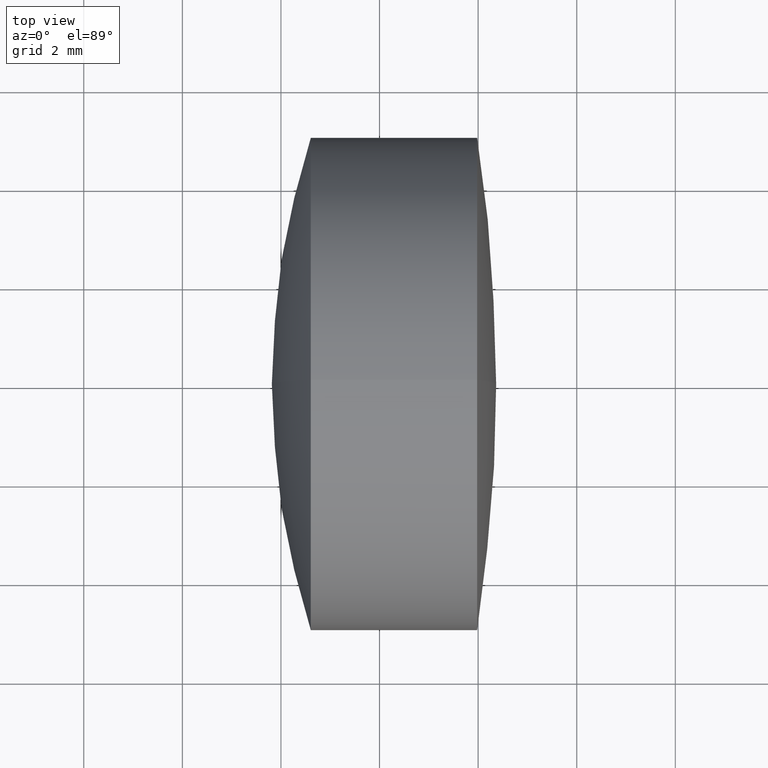
[diagram: clean part render]
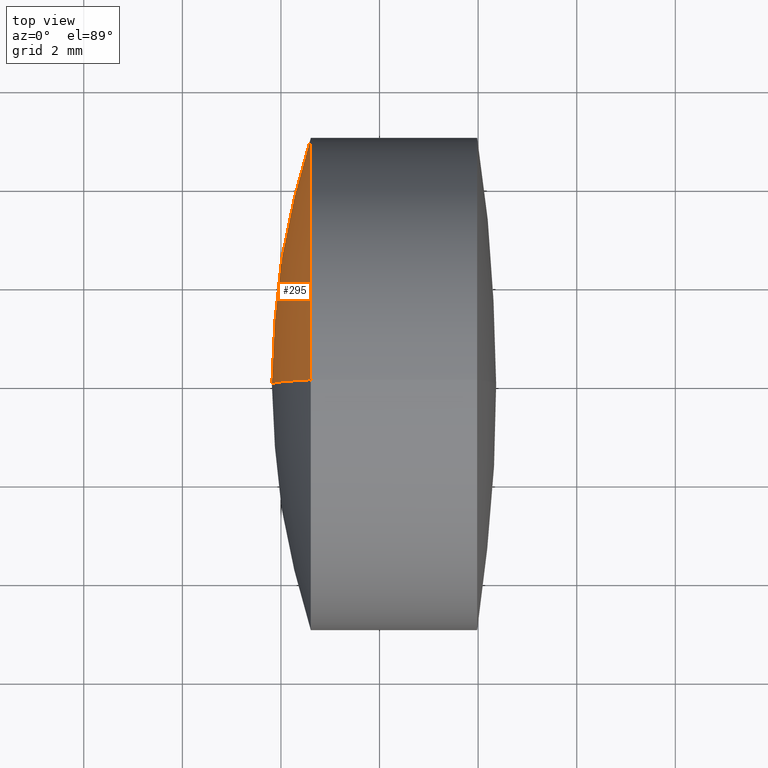
[diagram: same view with one face highlighted and labeled with its STEP entity id]
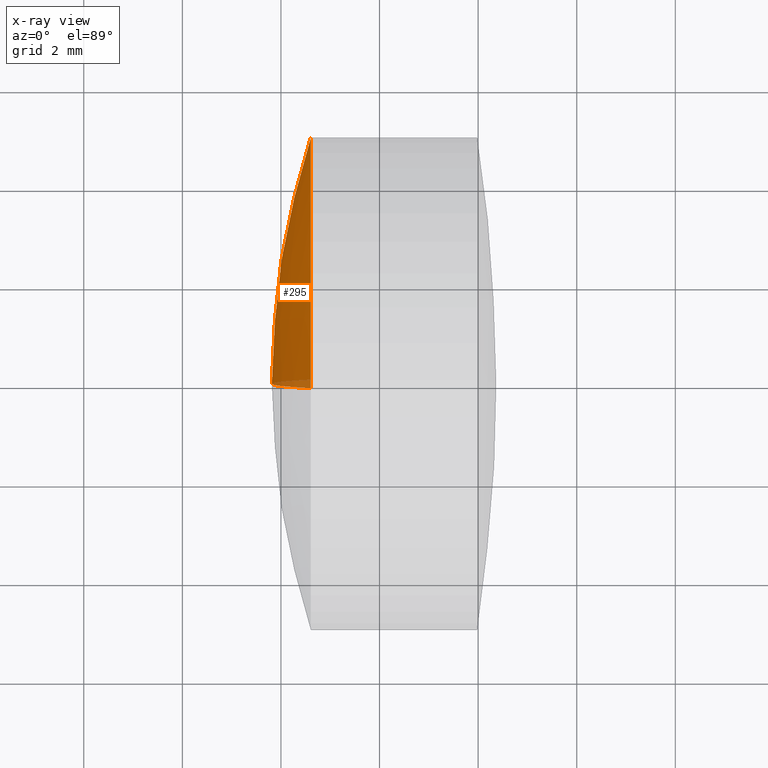
[diagram: x-ray of the same camera — body ghosted, the highlighted face saturated]
A machine part, top view. The second image highlights one B-rep face of the part: STEP entity #295.
The next image is the same camera in x-ray: the body ghosted, the highlighted face saturated — about 3% of this face is hidden behind the body in this view.
In plain terms, the highlighted spherical surface has radius 16.222 mm.
Its self-contained STEP definition (entity closure, byte-faithful):
#5 = CARTESIAN_POINT ( 'NONE',  ( 2.605354894896702700, 0.0000000000000000000, 5.000000000000002700 ) ) ;
#13 = CIRCLE ( 'NONE', #267, 16.22200000000000100 ) ;
#21 = SPHERICAL_SURFACE ( 'NONE', #198, 16.22200000000000100 ) ;
#22 = CIRCLE ( 'NONE', #72, 16.22200000000000100 ) ;
#25 = CARTESIAN_POINT ( 'NONE',  ( 1.815570678769085100, 0.0000000000000000000, 3.326856764881216400E-016 ) ) ;
#26 = CARTESIAN_POINT ( 'NONE',  ( 2.605354894896700900, 0.0000000000000000000, 0.0000000000000000000 ) ) ;
#30 = ORIENTED_EDGE ( 'NONE', *, *, #55, .T. ) ;
#47 = FACE_OUTER_BOUND ( 'NONE', #67, .T. ) ;
#50 = DIRECTION ( 'NONE',  ( 0.0000000000000000000, -1.224646799147353200E-016, 1.000000000000000000 ) ) ;
#55 = EDGE_CURVE ( 'NONE', #59, #318, #337, .T. ) ;
#59 = VERTEX_POINT ( 'NONE', #5 ) ;
#61 = ORIENTED_EDGE ( 'NONE', *, *, #291, .T. ) ;
#67 = EDGE_LOOP ( 'NONE', ( #30, #61, #327 ) ) ;
#72 = AXIS2_PLACEMENT_3D ( 'NONE', #76, #163, #290 ) ;
#76 = CARTESIAN_POINT ( 'NONE',  ( 18.03757067876908600, 0.0000000000000000000, -6.606253423002966100E-016 ) ) ;
#100 = DIRECTION ( 'NONE',  ( -0.0000000000000000000, 1.000000000000000000, 1.224646799147353200E-016 ) ) ;
#120 = DIRECTION ( 'NONE',  ( 0.0000000000000000000, 1.000000000000000000, 0.0000000000000000000 ) ) ;
#156 = CARTESIAN_POINT ( 'NONE',  ( 18.03757067876908600, 0.0000000000000000000, -6.606253423002966100E-016 ) ) ;
#163 = DIRECTION ( 'NONE',  ( 0.0000000000000000000, -1.000000000000000000, 0.0000000000000000000 ) ) ;
#182 = CARTESIAN_POINT ( 'NONE',  ( 2.605354894896702700, 6.123233995736769200E-016, -5.000000000000002700 ) ) ;
#190 = DIRECTION ( 'NONE',  ( -1.000000000000000000, -0.0000000000000000000, -0.0000000000000000000 ) ) ;
#198 = AXIS2_PLACEMENT_3D ( 'NONE', #300, #120, #216 ) ;
#216 = DIRECTION ( 'NONE',  ( 0.0000000000000000000, 0.0000000000000000000, 1.000000000000000000 ) ) ;
#224 = AXIS2_PLACEMENT_3D ( 'NONE', #26, #190, #282 ) ;
#259 = VERTEX_POINT ( 'NONE', #25 ) ;
#267 = AXIS2_PLACEMENT_3D ( 'NONE', #156, #100, #50 ) ;
#282 = DIRECTION ( 'NONE',  ( 0.0000000000000000000, 0.0000000000000000000, 1.000000000000000000 ) ) ;
#287 = EDGE_CURVE ( 'NONE', #59, #259, #22, .T. ) ;
#290 = DIRECTION ( 'NONE',  ( 0.0000000000000000000, 0.0000000000000000000, -1.000000000000000000 ) ) ;
#291 = EDGE_CURVE ( 'NONE', #318, #259, #13, .T. ) ;
#295 = ADVANCED_FACE ( 'NONE', ( #47 ), #21, .T. ) ;
#300 = CARTESIAN_POINT ( 'NONE',  ( 18.03757067876908600, 0.0000000000000000000, -6.606253423002966100E-016 ) ) ;
#318 = VERTEX_POINT ( 'NONE', #182 ) ;
#327 = ORIENTED_EDGE ( 'NONE', *, *, #287, .F. ) ;
#337 = CIRCLE ( 'NONE', #224, 5.000000000000000000 ) ;